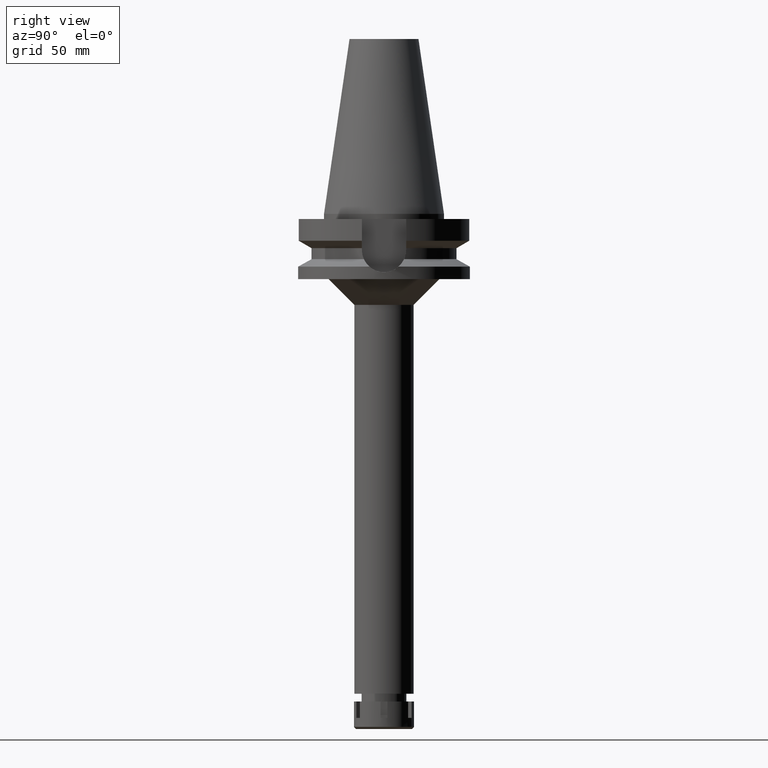
[diagram: clean part render]
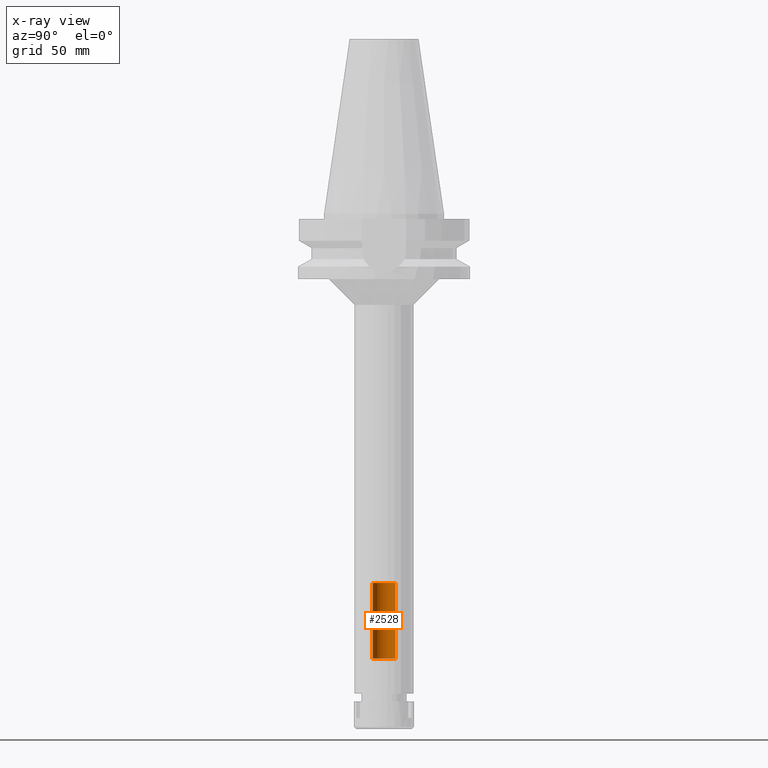
[diagram: x-ray — body ghosted, one internal face saturated and labeled with its STEP entity id]
A machine part, right view, then the same camera in x-ray: the body is ghosted and one INTERNAL B-rep face — a face not visible from any outside direction — is saturated and labeled: STEP entity #2528.
In plain terms, the highlighted cylindrical surface (edge-blend (fillet) strip) has radius 6.65 mm, axis along (0, 0, -1).
Its self-contained STEP definition (entity closure, byte-faithful):
#52 = CARTESIAN_POINT ( 'NONE',  ( 0.0000000000000000000, 6.649999999999999467, -259.0000000000000000 ) ) ;
#95 = AXIS2_PLACEMENT_3D ( 'NONE', #2961, #2378, #1861 ) ;
#115 = EDGE_CURVE ( 'NONE', #385, #2959, #1008, .T. ) ;
#157 = AXIS2_PLACEMENT_3D ( 'NONE', #406, #904, #3411 ) ;
#385 = VERTEX_POINT ( 'NONE', #1419 ) ;
#406 = CARTESIAN_POINT ( 'NONE',  ( 0.0000000000000000000, 2.712470195431000112E-14, 121.4899999999999949 ) ) ;
#904 = DIRECTION ( 'NONE',  ( 0.0000000000000000000, 0.0000000000000000000, -1.000000000000000000 ) ) ;
#981 = ORIENTED_EDGE ( 'NONE', *, *, #2069, .T. ) ;
#1008 = LINE ( 'NONE', #2648, #1111 ) ;
#1014 = ORIENTED_EDGE ( 'NONE', *, *, #3066, .T. ) ;
#1105 = EDGE_LOOP ( 'NONE', ( #1014, #2117, #981, #2217 ) ) ;
#1111 = VECTOR ( 'NONE', #2974, 1000.000000000000000 ) ;
#1151 = CARTESIAN_POINT ( 'NONE',  ( 0.0000000000000000000, -6.649999999999999467, -215.0000000000000000 ) ) ;
#1257 = DIRECTION ( 'NONE',  ( 0.0000000000000000000, 1.000000000000000000, 0.0000000000000000000 ) ) ;
#1328 = EDGE_CURVE ( 'NONE', #2947, #1954, #2496, .T. ) ;
#1419 = CARTESIAN_POINT ( 'NONE',  ( 0.0000000000000000000, -6.649999999999999467, -259.0000000000000000 ) ) ;
#1490 = CARTESIAN_POINT ( 'NONE',  ( 0.0000000000000000000, 6.649999999999999467, -215.0000000000000000 ) ) ;
#1643 = CIRCLE ( 'NONE', #3089, 6.649999999999999467 ) ;
#1709 = CARTESIAN_POINT ( 'NONE',  ( 0.0000000000000000000, 6.649999999999999467, -259.0000000000000000 ) ) ;
#1861 = DIRECTION ( 'NONE',  ( 0.0000000000000000000, -1.000000000000000000, 0.0000000000000000000 ) ) ;
#1954 = VERTEX_POINT ( 'NONE', #1490 ) ;
#2014 = CARTESIAN_POINT ( 'NONE',  ( 0.0000000000000000000, 2.712470195431000112E-14, -215.0000000000000000 ) ) ;
#2069 = EDGE_CURVE ( 'NONE', #385, #2947, #2293, .T. ) ;
#2117 = ORIENTED_EDGE ( 'NONE', *, *, #115, .F. ) ;
#2217 = ORIENTED_EDGE ( 'NONE', *, *, #1328, .T. ) ;
#2293 = CIRCLE ( 'NONE', #95, 6.649999999999999467 ) ;
#2378 = DIRECTION ( 'NONE',  ( 0.0000000000000000000, 0.0000000000000000000, -1.000000000000000000 ) ) ;
#2496 = LINE ( 'NONE', #1709, #2628 ) ;
#2528 = ADVANCED_FACE ( 'NONE', ( #3393 ), #3425, .F. ) ;
#2628 = VECTOR ( 'NONE', #3077, 1000.000000000000000 ) ;
#2648 = CARTESIAN_POINT ( 'NONE',  ( 0.0000000000000000000, -6.649999999999999467, -259.0000000000000000 ) ) ;
#2947 = VERTEX_POINT ( 'NONE', #52 ) ;
#2959 = VERTEX_POINT ( 'NONE', #1151 ) ;
#2961 = CARTESIAN_POINT ( 'NONE',  ( 0.0000000000000000000, 2.712470195431000112E-14, -259.0000000000000000 ) ) ;
#2974 = DIRECTION ( 'NONE',  ( 0.0000000000000000000, 0.0000000000000000000, 1.000000000000000000 ) ) ;
#3066 = EDGE_CURVE ( 'NONE', #1954, #2959, #1643, .T. ) ;
#3077 = DIRECTION ( 'NONE',  ( 0.0000000000000000000, 0.0000000000000000000, 1.000000000000000000 ) ) ;
#3089 = AXIS2_PLACEMENT_3D ( 'NONE', #2014, #3151, #1257 ) ;
#3151 = DIRECTION ( 'NONE',  ( 0.0000000000000000000, 0.0000000000000000000, 1.000000000000000000 ) ) ;
#3393 = FACE_OUTER_BOUND ( 'NONE', #1105, .T. ) ;
#3411 = DIRECTION ( 'NONE',  ( 0.0000000000000000000, -1.000000000000000000, 0.0000000000000000000 ) ) ;
#3425 = CYLINDRICAL_SURFACE ( 'NONE', #157, 6.649999999999999467 ) ;